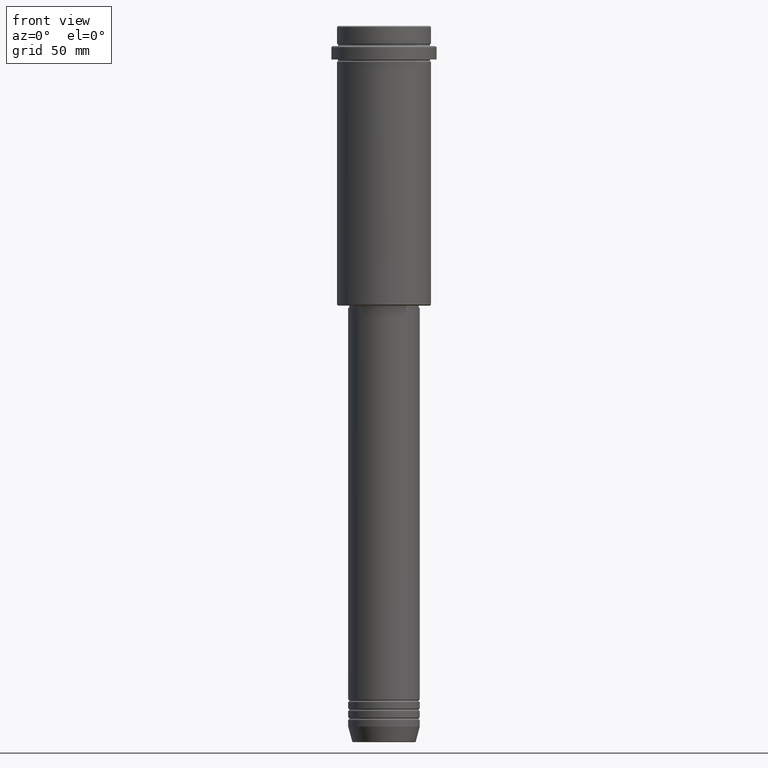
[diagram: clean part render]
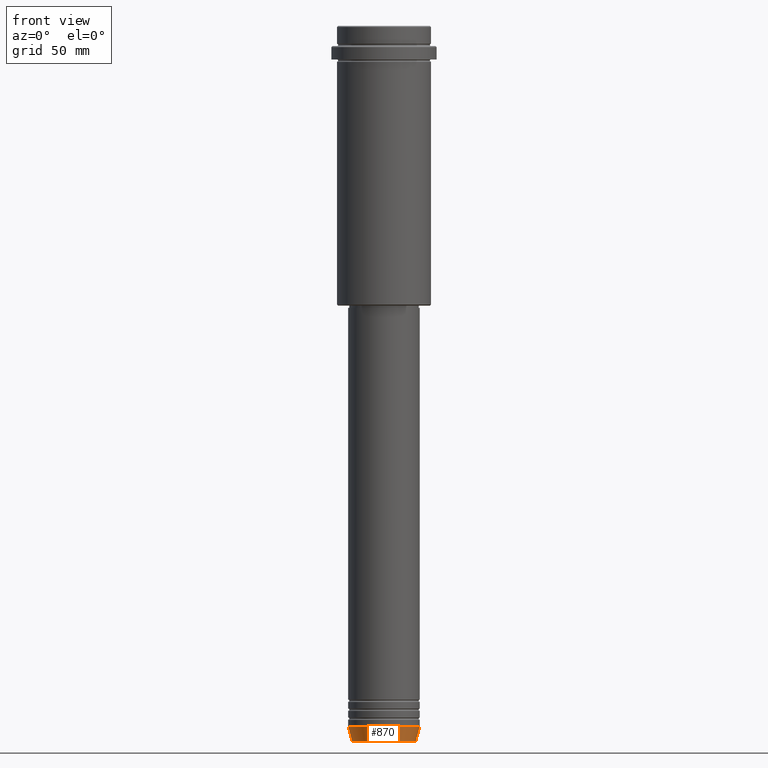
[diagram: same view with one face highlighted and labeled with its STEP entity id]
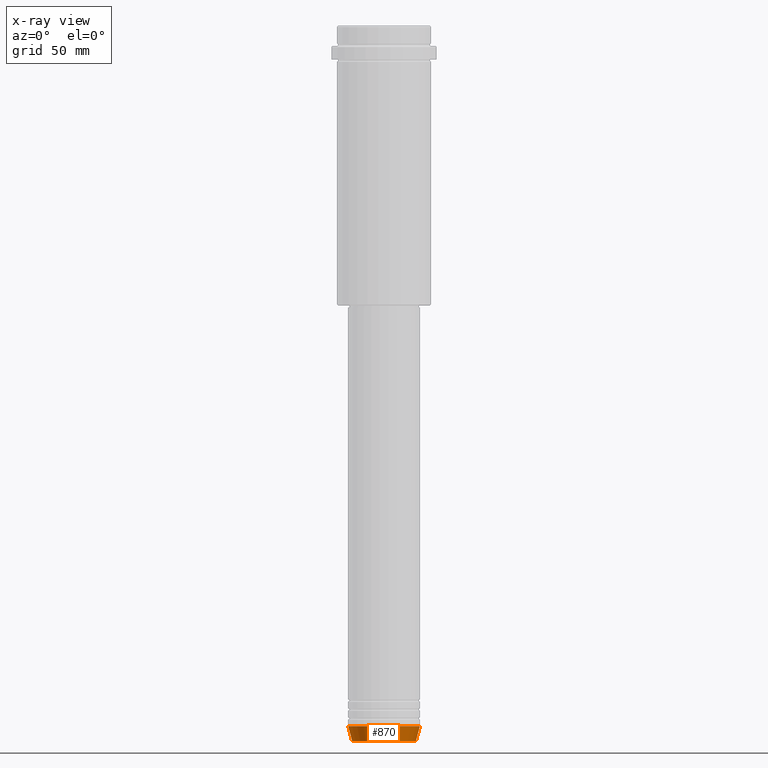
[diagram: x-ray of the same camera — body ghosted, the highlighted face saturated]
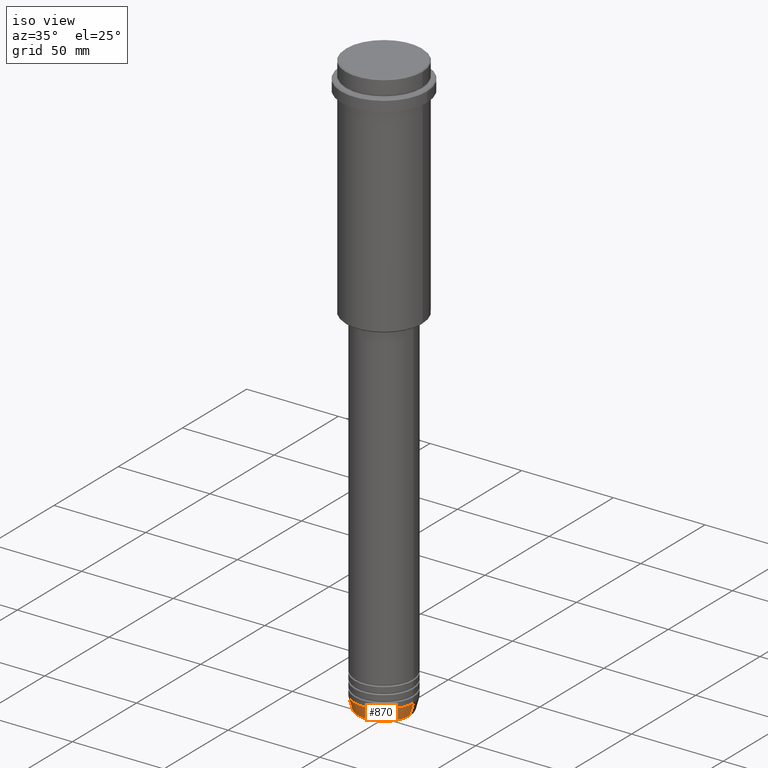
[diagram: same view with one face highlighted and labeled with its STEP entity id]
A machine part, front view. The second image highlights one B-rep face of the part: STEP entity #870.
The next image is the same camera in x-ray: the body ghosted, the highlighted face saturated — about 0% of this face is hidden behind the body in this view.
A second angle (iso view) of the same face is appended — the face is thin or edge-on in the first view.
In plain terms, the highlighted conical surface has half-angle 15 deg.
Its self-contained STEP definition (entity closure, byte-faithful):
#16 = AXIS2_PLACEMENT_3D ( 'NONE', #637, #195, #744 ) ;
#34 = DIRECTION ( 'NONE',  ( 0.2588190451025213501, 0.000000000000000000, 0.9659258262890680902 ) ) ;
#84 = VECTOR ( 'NONE', #763, 1000.000000000000000 ) ;
#148 = ORIENTED_EDGE ( 'NONE', *, *, #566, .T. ) ;
#156 = VECTOR ( 'NONE', #34, 1000.000000000000000 ) ;
#157 = CARTESIAN_POINT ( 'NONE',  ( -16.00000000000000000, 1.959434878635765131E-15, -313.0000000000000000 ) ) ;
#195 = DIRECTION ( 'NONE',  ( -0.000000000000000000, -0.000000000000000000, 1.000000000000000000 ) ) ;
#197 = AXIS2_PLACEMENT_3D ( 'NONE', #796, #456, #576 ) ;
#257 = LINE ( 'NONE', #554, #156 ) ;
#272 = VERTEX_POINT ( 'NONE', #808 ) ;
#321 = FACE_OUTER_BOUND ( 'NONE', #1399, .T. ) ;
#329 = CARTESIAN_POINT ( 'NONE',  ( -16.00000000000000000, 1.959434878635765131E-15, -313.0000000000000000 ) ) ;
#347 = CARTESIAN_POINT ( 'NONE',  ( -14.22365507213718772, 1.850665122131323337E-15, -319.6294095225512706 ) ) ;
#433 = CARTESIAN_POINT ( 'NONE',  ( 16.00000000000000000, 0.000000000000000000, -313.0000000000000000 ) ) ;
#456 = DIRECTION ( 'NONE',  ( -0.000000000000000000, -0.000000000000000000, 1.000000000000000000 ) ) ;
#467 = CARTESIAN_POINT ( 'NONE',  ( 0.000000000000000000, 0.000000000000000000, -313.0000000000000000 ) ) ;
#544 = DIRECTION ( 'NONE',  ( 1.000000000000000000, 0.000000000000000000, 0.000000000000000000 ) ) ;
#554 = CARTESIAN_POINT ( 'NONE',  ( 16.00000000000000000, 0.000000000000000000, -313.0000000000000000 ) ) ;
#566 = EDGE_CURVE ( 'NONE', #272, #968, #257, .T. ) ;
#576 = DIRECTION ( 'NONE',  ( 1.000000000000000000, 0.000000000000000000, 0.000000000000000000 ) ) ;
#581 = EDGE_CURVE ( 'NONE', #1306, #968, #1203, .T. ) ;
#637 = CARTESIAN_POINT ( 'NONE',  ( 0.000000000000000000, 0.000000000000000000, -313.0000000000000000 ) ) ;
#638 = EDGE_CURVE ( 'NONE', #1075, #272, #811, .T. ) ;
#686 = DIRECTION ( 'NONE',  ( -0.000000000000000000, -0.000000000000000000, 1.000000000000000000 ) ) ;
#688 = EDGE_CURVE ( 'NONE', #1075, #1306, #871, .T. ) ;
#744 = DIRECTION ( 'NONE',  ( 1.000000000000000000, 0.000000000000000000, 0.000000000000000000 ) ) ;
#763 = DIRECTION ( 'NONE',  ( -0.2588190451025213501, 3.169619151431772337E-17, 0.9659258262890680902 ) ) ;
#767 = ORIENTED_EDGE ( 'NONE', *, *, #581, .F. ) ;
#796 = CARTESIAN_POINT ( 'NONE',  ( 0.000000000000000000, 0.000000000000000000, -319.6294095225512706 ) ) ;
#808 = CARTESIAN_POINT ( 'NONE',  ( 14.22365507213718772, 0.000000000000000000, -319.6294095225512706 ) ) ;
#811 = CIRCLE ( 'NONE', #197, 14.22365507213718772 ) ;
#870 = ADVANCED_FACE ( 'NONE', ( #321 ), #1386, .T. ) ;
#871 = LINE ( 'NONE', #329, #84 ) ;
#885 = ORIENTED_EDGE ( 'NONE', *, *, #688, .F. ) ;
#947 = AXIS2_PLACEMENT_3D ( 'NONE', #467, #686, #544 ) ;
#968 = VERTEX_POINT ( 'NONE', #433 ) ;
#1075 = VERTEX_POINT ( 'NONE', #347 ) ;
#1191 = ORIENTED_EDGE ( 'NONE', *, *, #638, .T. ) ;
#1203 = CIRCLE ( 'NONE', #947, 16.00000000000000000 ) ;
#1306 = VERTEX_POINT ( 'NONE', #157 ) ;
#1386 = CONICAL_SURFACE ( 'NONE', #16, 16.00000000000000000, 0.2617993877991500740 ) ;
#1399 = EDGE_LOOP ( 'NONE', ( #885, #1191, #148, #767 ) ) ;